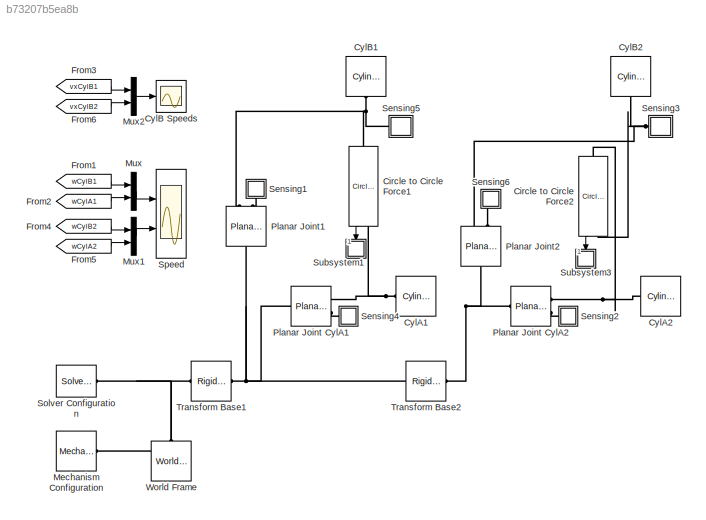
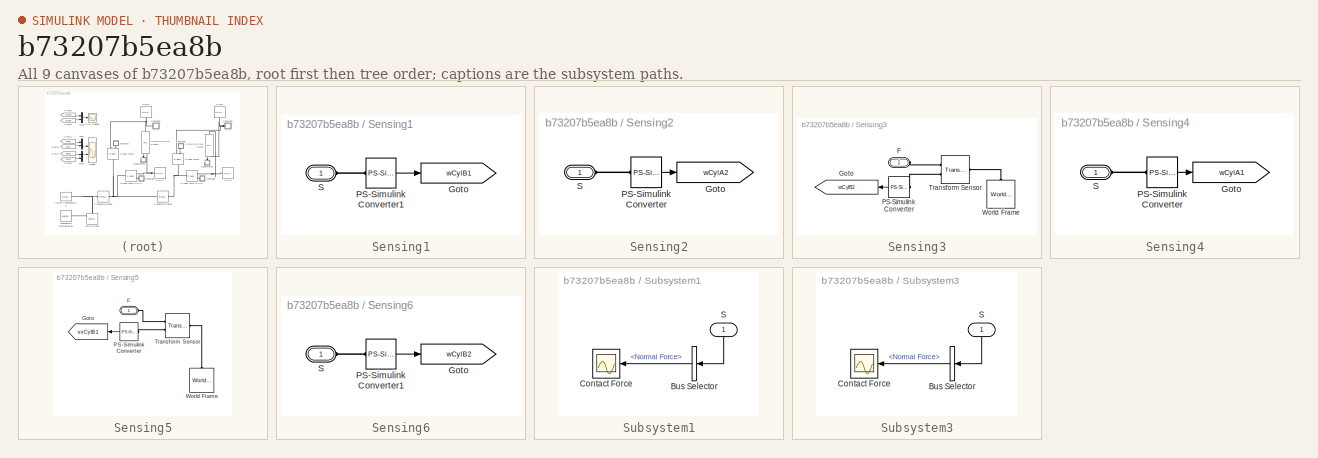
[diagram: thumbnail index - all 9 canvases of the model, root first then tree order]
MODEL slx_b73207b5ea8b
KIND model
CONFIG AbsTol = 1e-5
CONFIG FixedStep = auto
CONFIG MaxStep = 1e-2
CONFIG MinStep = auto
CONFIG PostLoadFcn = warning off Simulink:Engine:UsingDefaultMaxStepSize\n
CONFIG RelTol = 1e-4
CONFIG SampleTimeConstraint = Unconstrained
CONFIG Solver = ode15s
CONFIG SolverMode = Auto
CONFIG SolverName = ode15s
CONFIG StartFcn = tic;
CONFIG StartTime = 0.0
CONFIG StopFcn = Elapsed_Sim_Time = toc;\ndisp(['Elapsed Sim Time = ' num2str(Elapsed_Sim_Time)]);\n
CONFIG StopTime = 2
BLOCK [Reference] Circle to Circle Force1  REF=Contact_Forces_Lib/2D/Circle to Circle Force
  Ports = [0, 1, 0, 0, 0, 1, 1]
  SourceBlock = Contact_Forces_Lib/2D/Circle to Circle Force
  SourceType = Circle to Circle Force
BLOCK [Reference] Circle to Circle Force2  REF=Contact_Forces_Lib/2D/Circle to Circle Force
  Ports = [0, 1, 0, 0, 0, 1, 1]
  SourceBlock = Contact_Forces_Lib/2D/Circle to Circle Force
  SourceType = Circle to Circle Force
BLOCK [Reference] CylA1  REF=Parts_Lib/Cylinder
  Ports = [0, 0, 0, 0, 0, 1]
  SourceBlock = Parts_Lib/Cylinder
  SourceType = Solid Cylinder with Markings
BLOCK [Reference] CylA2  REF=Parts_Lib/Cylinder
  Ports = [0, 0, 0, 0, 0, 1]
  SourceBlock = Parts_Lib/Cylinder
  SourceType = Solid Cylinder with Markings
BLOCK [Scope] CylB Speeds
  Ports = [1]
  ScopeSpecificationString = C++SS(StrPVP(Location,[406, 662, 928, 881]),StrPVP(Open,off),StrPVP(ZoomMode,yonly),MxPVP(AxesTitles,24,struct('axes1','%<SignalLabel>')),MxPVP(ScopeGraphics,28,struct('FigureColor','[0.501960784313725 0.501960784313725 0.501960784313725]','AxesColor','[0 0 0]','AxesTickColor','[1 1 1]','LineColors','[1 1 0;1 0 1;0 1 1;1 0 0;0 1 0;0 0 1]','LineStyles','-|-|-|-|-|-','LineWidths','[3 2 6 4 2 0.5]','...<+310ch>
BLOCK [Reference] CylB1  REF=Parts_Lib/Cylinder
  Ports = [0, 0, 0, 0, 0, 1]
  SourceBlock = Parts_Lib/Cylinder
  SourceType = Solid Cylinder with Markings
BLOCK [Reference] CylB2  REF=Parts_Lib/Cylinder
  Ports = [0, 0, 0, 0, 0, 1]
  SourceBlock = Parts_Lib/Cylinder
  SourceType = Solid Cylinder with Markings
BLOCK [From] From1
  GotoTag = wCylB1
  TagVisibility = global
BLOCK [From] From2
  GotoTag = wCylA1
  TagVisibility = global
BLOCK [From] From3
  GotoTag = vxCylB1
  TagVisibility = global
BLOCK [From] From4
  GotoTag = wCylB2
  TagVisibility = global
BLOCK [From] From5
  GotoTag = wCylA2
  TagVisibility = global
BLOCK [From] From6
  GotoTag = vxCylB2
  TagVisibility = global
BLOCK [Reference] Mechanism Configuration  REF=sm_lib/Utilities/Mechanism
Configuration
  Ports = [0, 0, 0, 0, 0, 0, 1]
  SourceBlock = sm_lib/Utilities/Mechanism\nConfiguration
  SourceType = Mechanism\nConfiguration
BLOCK [Mux] Mux
  DisplayOption = bar
  Inputs = 2
  Ports = [2, 1]
BLOCK [Mux] Mux1
  DisplayOption = bar
  Inputs = 2
  Ports = [2, 1]
BLOCK [Mux] Mux2
  DisplayOption = bar
  Inputs = 2
  Ports = [2, 1]
BLOCK [Reference] Planar Joint CylA1  REF=sm_lib/Joints/Planar Joint
  Ports = [0, 0, 0, 0, 0, 1, 2]
  SourceBlock = sm_lib/Joints/Planar Joint
  SourceType = Planar Joint
BLOCK [Reference] Planar Joint CylA2  REF=sm_lib/Joints/Planar Joint
  Ports = [0, 0, 0, 0, 0, 1, 2]
  SourceBlock = sm_lib/Joints/Planar Joint
  SourceType = Planar Joint
BLOCK [Reference] Planar Joint1  REF=sm_lib/Joints/Planar Joint
  Ports = [0, 0, 0, 0, 0, 1, 2]
  SourceBlock = sm_lib/Joints/Planar Joint
  SourceType = Planar Joint
BLOCK [Reference] Planar Joint2  REF=sm_lib/Joints/Planar Joint
  Ports = [0, 0, 0, 0, 0, 1, 2]
  SourceBlock = sm_lib/Joints/Planar Joint
  SourceType = Planar Joint
BLOCK [SubSystem] Sensing1
  Ports = [0, 0, 0, 0, 0, 1]
  RequestExecContextInheritance = off
  Variant = off
BLOCK [Goto] Sensing1/Goto
  GotoTag = wCylB1
  TagVisibility = global
BLOCK [Reference] Sensing1/PS-Simulink Converter1  REF=nesl_utility/PS-Simulink
Converter
  Ports = [0, 1, 0, 0, 0, 1]
  SourceBlock = nesl_utility/PS-Simulink\nConverter
  SourceType = PS-Simulink\nConverter
BLOCK [PMIOPort] Sensing1/S
  Port = 1
  Side = Left
BLOCK [SubSystem] Sensing2
  Ports = [0, 0, 0, 0, 0, 1]
  RequestExecContextInheritance = off
  Variant = off
BLOCK [Goto] Sensing2/Goto
  GotoTag = wCylA2
  TagVisibility = global
BLOCK [Reference] Sensing2/PS-Simulink Converter  REF=nesl_utility/PS-Simulink
Converter
  Ports = [0, 1, 0, 0, 0, 1]
  SourceBlock = nesl_utility/PS-Simulink\nConverter
  SourceType = PS-Simulink\nConverter
BLOCK [PMIOPort] Sensing2/S
  Port = 1
  Side = Left
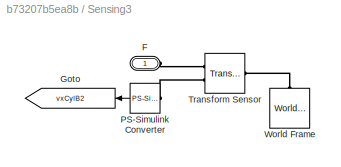
BLOCK [SubSystem] Sensing3
  Ports = [0, 0, 0, 0, 0, 1]
  RequestExecContextInheritance = off
  Variant = off
BLOCK [PMIOPort] Sensing3/F
  Port = 1
  Side = Left
BLOCK [Goto] Sensing3/Goto
  GotoTag = vxCylB2
  TagVisibility = global
BLOCK [Reference] Sensing3/PS-Simulink Converter  REF=nesl_utility/PS-Simulink
Converter
  Ports = [0, 1, 0, 0, 0, 1]
  SourceBlock = nesl_utility/PS-Simulink\nConverter
  SourceType = PS-Simulink\nConverter
BLOCK [Reference] Sensing3/Transform Sensor  REF=sm_lib/Frames and
Transforms/Transform
Sensor
  Ports = [0, 0, 0, 0, 0, 1, 2]
  SourceBlock = sm_lib/Frames and\nTransforms/Transform\nSensor
  SourceType = Transform\nSensor
BLOCK [Reference] Sensing3/World Frame  REF=sm_lib/Frames and
Transforms/World Frame
  Ports = [0, 0, 0, 0, 0, 0, 1]
  SourceBlock = sm_lib/Frames and\nTransforms/World Frame
  SourceType = World Frame
BLOCK [SubSystem] Sensing4
  Ports = [0, 0, 0, 0, 0, 1]
  RequestExecContextInheritance = off
  Variant = off
BLOCK [Goto] Sensing4/Goto
  GotoTag = wCylA1
  TagVisibility = global
BLOCK [Reference] Sensing4/PS-Simulink Converter  REF=nesl_utility/PS-Simulink
Converter
  Ports = [0, 1, 0, 0, 0, 1]
  SourceBlock = nesl_utility/PS-Simulink\nConverter
  SourceType = PS-Simulink\nConverter
BLOCK [PMIOPort] Sensing4/S
  Port = 1
  Side = Left
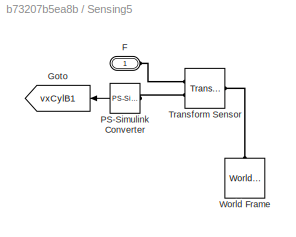
BLOCK [SubSystem] Sensing5
  Ports = [0, 0, 0, 0, 0, 1]
  RequestExecContextInheritance = off
  Variant = off
BLOCK [PMIOPort] Sensing5/F
  Port = 1
  Side = Left
BLOCK [Goto] Sensing5/Goto
  GotoTag = vxCylB1
  TagVisibility = global
BLOCK [Reference] Sensing5/PS-Simulink Converter  REF=nesl_utility/PS-Simulink
Converter
  Ports = [0, 1, 0, 0, 0, 1]
  SourceBlock = nesl_utility/PS-Simulink\nConverter
  SourceType = PS-Simulink\nConverter
BLOCK [Reference] Sensing5/Transform Sensor  REF=sm_lib/Frames and
Transforms/Transform
Sensor
  Ports = [0, 0, 0, 0, 0, 1, 2]
  SourceBlock = sm_lib/Frames and\nTransforms/Transform\nSensor
  SourceType = Transform\nSensor
BLOCK [Reference] Sensing5/World Frame  REF=sm_lib/Frames and
Transforms/World Frame
  Ports = [0, 0, 0, 0, 0, 0, 1]
  SourceBlock = sm_lib/Frames and\nTransforms/World Frame
  SourceType = World Frame
BLOCK [SubSystem] Sensing6
  Ports = [0, 0, 0, 0, 0, 1]
  RequestExecContextInheritance = off
  Variant = off
BLOCK [Goto] Sensing6/Goto
  GotoTag = wCylB2
  TagVisibility = global
BLOCK [Reference] Sensing6/PS-Simulink Converter1  REF=nesl_utility/PS-Simulink
Converter
  Ports = [0, 1, 0, 0, 0, 1]
  SourceBlock = nesl_utility/PS-Simulink\nConverter
  SourceType = PS-Simulink\nConverter
BLOCK [PMIOPort] Sensing6/S
  Port = 1
  Side = Left
BLOCK [Reference] Solver Configuration  REF=nesl_utility/Solver
Configuration
  Ports = [0, 0, 0, 0, 0, 0, 1]
  SourceBlock = nesl_utility/Solver\nConfiguration
  SourceType = Solver\nConfiguration
BLOCK [Scope] Speed
  NumInputPorts = 2
  Ports = [2]
  ScopeSpecificationString = Simulink.scopes.TimeScopeBlockCfg('CurrentConfiguration', extmgr.ConfigurationSet(extmgr.Configuration('Core','General UI',true,'FigureColor',[0.501960784313725 0.501960784313725 0.501960784313725]),extmgr.Configuration('Core','Source UI',true),extmgr.Configuration('Sources','WiredSimulink',true,'DataLoggingSaveFormat','StructureWithTime','DataLoggingDecimation','1'),extmgr.Configuration('Visuals'...<+3975ch>
BLOCK [SubSystem] Subsystem1
  Ports = [1]
  RequestExecContextInheritance = off
  Variant = off
BLOCK [BusSelector] Subsystem1/Bus Selector
  OutputSignals = Normal Force
  Ports = [1, 1]
BLOCK [Scope] Subsystem1/Contact Force
  Ports = [1]
  ScopeSpecificationString = C++SS(StrPVP(Location,[965, 424, 1289, 663]),StrPVP(Open,off),StrPVP(ZoomMode,xonly),MxPVP(AxesTitles,24,struct('axes1','%<SignalLabel>')),MxPVP(ScopeGraphics,28,struct('FigureColor','[0.501960784313725 0.501960784313725 0.501960784313725]','AxesColor','[0 0 0]','AxesTickColor','[1 1 1]','LineColors','[1 1 0;1 0 1;0 1 1;1 0 0;0 1 0;0 0 1]','LineStyles','-|-|-|-|-|-','LineWidths','[2 0.5 0.5 0.5 0....<+280ch>
BLOCK [Inport] Subsystem1/S
  IconDisplay = Port number
BLOCK [SubSystem] Subsystem3
  Ports = [1]
  RequestExecContextInheritance = off
  Variant = off
BLOCK [BusSelector] Subsystem3/Bus Selector
  OutputSignals = Normal Force
  Ports = [1, 1]
BLOCK [Scope] Subsystem3/Contact Force
  Ports = [1]
  ScopeSpecificationString = C++SS(StrPVP(Location,[965, 424, 1289, 663]),StrPVP(Open,off),StrPVP(ZoomMode,xonly),MxPVP(AxesTitles,24,struct('axes1','%<SignalLabel>')),MxPVP(ScopeGraphics,28,struct('FigureColor','[0.501960784313725 0.501960784313725 0.501960784313725]','AxesColor','[0 0 0]','AxesTickColor','[1 1 1]','LineColors','[1 1 0;1 0 1;0 1 1;1 0 0;0 1 0;0 0 1]','LineStyles','-|-|-|-|-|-','LineWidths','[2 0.5 0.5 0.5 0....<+280ch>
BLOCK [Inport] Subsystem3/S
  IconDisplay = Port number
BLOCK [Reference] Transform Base1  REF=sm_lib/Frames and
Transforms/Rigid
Transform
  Ports = [0, 0, 0, 0, 0, 1, 1]
  SourceBlock = sm_lib/Frames and\nTransforms/Rigid\nTransform
  SourceType = Rigid\nTransform
BLOCK [Reference] Transform Base2  REF=sm_lib/Frames and
Transforms/Rigid
Transform
  Ports = [0, 0, 0, 0, 0, 1, 1]
  SourceBlock = sm_lib/Frames and\nTransforms/Rigid\nTransform
  SourceType = Rigid\nTransform
BLOCK [Reference] World Frame  REF=sm_lib/Frames and
Transforms/World Frame
  Ports = [0, 0, 0, 0, 0, 0, 1]
  SourceBlock = sm_lib/Frames and\nTransforms/World Frame
  SourceType = World Frame
LINE Circle to Circle Force1:1 -> Subsystem1:1
LINE Circle to Circle Force2:1 -> Subsystem3:1
LINE From1:1 -> Mux:1
LINE From2:1 -> Mux:2
LINE From3:1 -> Mux2:1
LINE From4:1 -> Mux1:1
LINE From5:1 -> Mux1:2
LINE From6:1 -> Mux2:2
LINE Mux1:1 -> Speed:2
LINE Mux2:1 -> CylB Speeds:1
LINE Mux:1 -> Speed:1
LINE Sensing1/PS-Simulink Converter1:1 -> Sensing1/Goto:1
LINE Sensing2/PS-Simulink Converter:1 -> Sensing2/Goto:1
LINE Sensing3/PS-Simulink Converter:1 -> Sensing3/Goto:1
LINE Sensing4/PS-Simulink Converter:1 -> Sensing4/Goto:1
LINE Sensing5/PS-Simulink Converter:1 -> Sensing5/Goto:1
LINE Sensing6/PS-Simulink Converter1:1 -> Sensing6/Goto:1
LINE Subsystem1/Bus Selector:1 -> Subsystem1/Contact Force:1
LINE Subsystem1/S:1 -> Subsystem1/Bus Selector:1
LINE Subsystem3/Bus Selector:1 -> Subsystem3/Contact Force:1
LINE Subsystem3/S:1 -> Subsystem3/Bus Selector:1
PNET net1: Circle to Circle Force1:LConn1 -- CylB1:LConn1 -- Planar Joint1:RConn1 -- Sensing5:LConn1
PNET net2: Circle to Circle Force1:RConn1 -- CylA1:LConn1 -- Planar Joint CylA1:RConn1
PNET net3: Circle to Circle Force2:LConn1 -- CylA2:LConn1 -- Planar Joint CylA2:RConn1
PNET net4: Circle to Circle Force2:RConn1 -- CylB2:LConn1 -- Planar Joint2:RConn1 -- Sensing3:LConn1
PNET net5: Mechanism Configuration:RConn1 -- Solver Configuration:RConn1 -- Transform Base1:LConn1 -- World Frame:RConn1
PNET net6: Planar Joint CylA1:LConn1 -- Planar Joint1:LConn1 -- Transform Base1:RConn1 -- Transform Base2:LConn1
PLINE Planar Joint CylA1:RConn2 -- Sensing4:LConn1
PNET net7: Planar Joint CylA2:LConn1 -- Planar Joint2:LConn1 -- Transform Base2:RConn1
PLINE Planar Joint CylA2:RConn2 -- Sensing2:LConn1
PLINE Planar Joint1:RConn2 -- Sensing1:LConn1
PLINE Planar Joint2:RConn2 -- Sensing6:LConn1
PLINE Sensing1/PS-Simulink Converter1:LConn1 -- Sensing1/S:RConn1
PLINE Sensing2/PS-Simulink Converter:LConn1 -- Sensing2/S:RConn1
PLINE Sensing3/F:RConn1 -- Sensing3/Transform Sensor:RConn1
PLINE Sensing3/PS-Simulink Converter:LConn1 -- Sensing3/Transform Sensor:RConn2
PLINE Sensing3/Transform Sensor:LConn1 -- Sensing3/World Frame:RConn1
PLINE Sensing4/PS-Simulink Converter:LConn1 -- Sensing4/S:RConn1
PLINE Sensing5/F:RConn1 -- Sensing5/Transform Sensor:RConn1
PLINE Sensing5/PS-Simulink Converter:LConn1 -- Sensing5/Transform Sensor:RConn2
PLINE Sensing5/Transform Sensor:LConn1 -- Sensing5/World Frame:RConn1
PLINE Sensing6/PS-Simulink Converter1:LConn1 -- Sensing6/S:RConn1
note: PNET lines group multi-terminal physical nets as a canonical sorted terminal list (undirected conserving connections); 2-terminal nets keep the pairwise PLINE form
